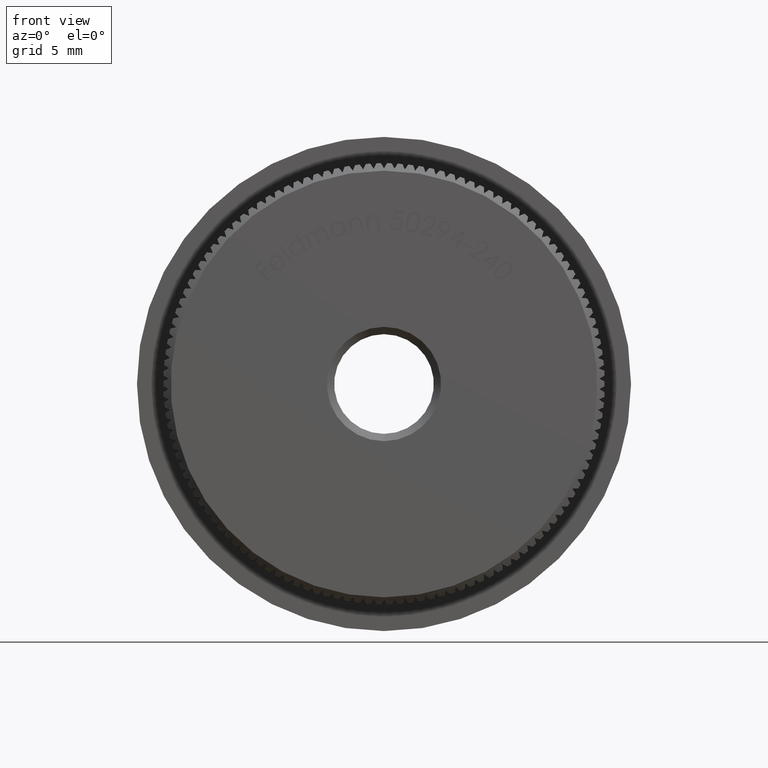
[diagram: clean part render]
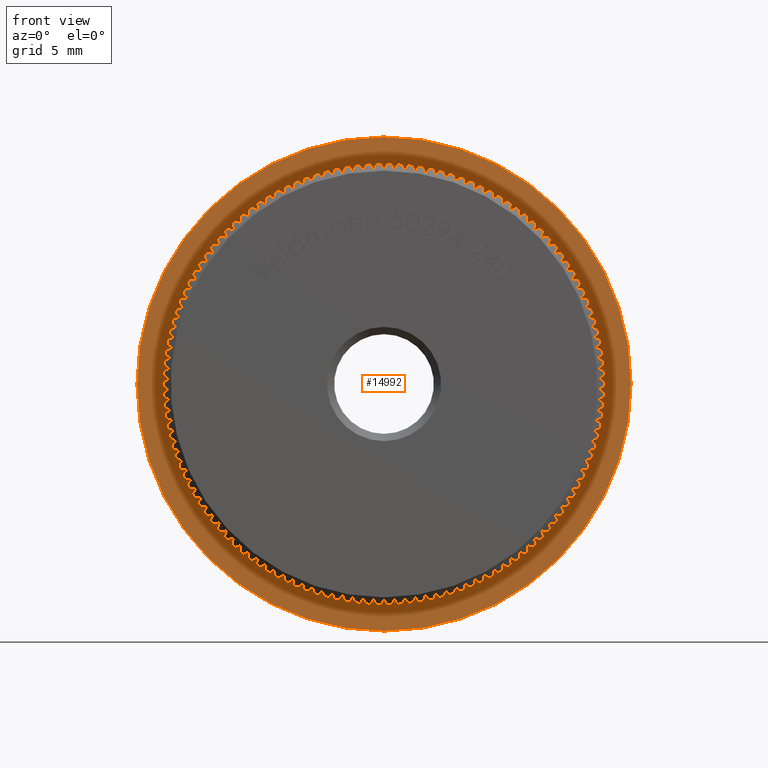
[diagram: same view with one face highlighted and labeled with its STEP entity id]
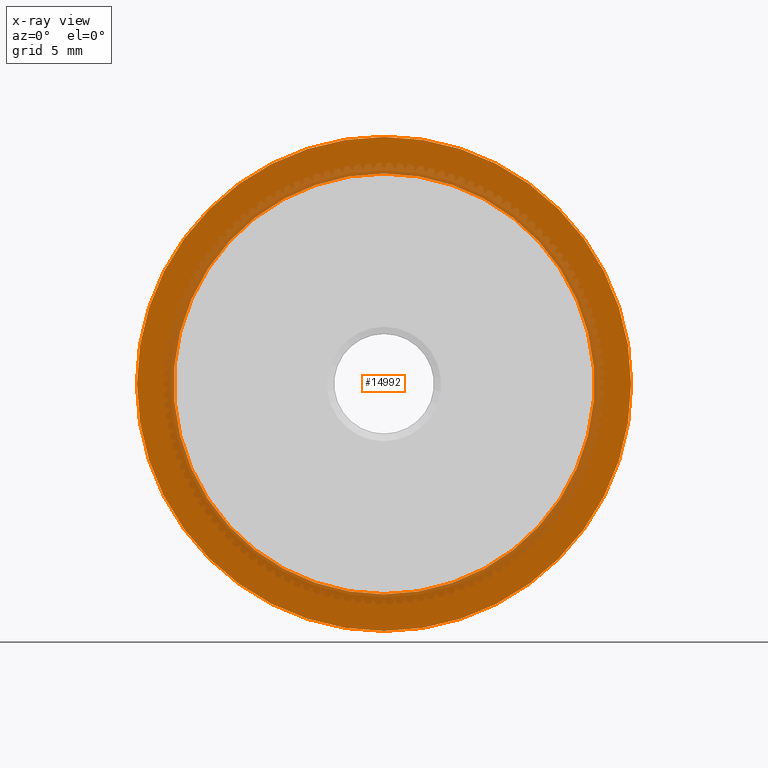
[diagram: x-ray of the same camera — body ghosted, the highlighted face saturated]
A machine part, front view. The second image highlights one B-rep face of the part: STEP entity #14992.
The next image is the same camera in x-ray: the body ghosted, the highlighted face saturated — about 24% of this face is hidden behind the body in this view.
In plain terms, the highlighted planar face has unit normal (0, -1, -0).
Its self-contained STEP definition (entity closure, byte-faithful):
#271 = ORIENTED_EDGE ( 'NONE', *, *, #9283, .T. ) ;
#390 = DIRECTION ( 'NONE',  ( -0.0000000000000000000, -1.000000000000000000, -0.0000000000000000000 ) ) ;
#511 = AXIS2_PLACEMENT_3D ( 'NONE', #20660, #10355, #22608 ) ;
#651 = CARTESIAN_POINT ( 'NONE',  ( 0.0000000000000000000, 7.799999999999999800, 0.0000000000000000000 ) ) ;
#1621 = DIRECTION ( 'NONE',  ( 0.0000000000000000000, -1.000000000000000000, -0.0000000000000000000 ) ) ;
#2541 = EDGE_CURVE ( 'NONE', #23341, #2962, #16486, .T. ) ;
#2962 = VERTEX_POINT ( 'NONE', #16175 ) ;
#3973 = DIRECTION ( 'NONE',  ( -0.0000000000000000000, -1.000000000000000000, -0.0000000000000000000 ) ) ;
#4452 = CARTESIAN_POINT ( 'NONE',  ( 2.063529856563290200E-015, 7.799999999999999800, 16.85000000000000100 ) ) ;
#4768 = DIRECTION ( 'NONE',  ( 0.0000000000000000000, 0.0000000000000000000, -1.000000000000000000 ) ) ;
#5936 = DIRECTION ( 'NONE',  ( 0.0000000000000000000, 0.0000000000000000000, -1.000000000000000000 ) ) ;
#6673 = AXIS2_PLACEMENT_3D ( 'NONE', #26445, #3973, #12436 ) ;
#8655 = VERTEX_POINT ( 'NONE', #4452 ) ;
#9283 = EDGE_CURVE ( 'NONE', #25737, #8655, #19575, .T. ) ;
#9892 = DIRECTION ( 'NONE',  ( 0.0000000000000000000, 0.0000000000000000000, -1.000000000000000000 ) ) ;
#10355 = DIRECTION ( 'NONE',  ( -0.0000000000000000000, -1.000000000000000000, -0.0000000000000000000 ) ) ;
#11865 = PLANE ( 'NONE',  #19041 ) ;
#12436 = DIRECTION ( 'NONE',  ( 0.0000000000000000000, 0.0000000000000000000, -1.000000000000000000 ) ) ;
#13342 = FACE_BOUND ( 'NONE', #13804, .T. ) ;
#13357 = ORIENTED_EDGE ( 'NONE', *, *, #19393, .T. ) ;
#13580 = CARTESIAN_POINT ( 'NONE',  ( 1.800230794746609500E-015, 7.799999999999998900, 14.35000000000000100 ) ) ;
#13694 = ORIENTED_EDGE ( 'NONE', *, *, #2541, .F. ) ;
#13804 = EDGE_LOOP ( 'NONE', ( #14912, #13694 ) ) ;
#13855 = DIRECTION ( 'NONE',  ( -0.0000000000000000000, -1.000000000000000000, -0.0000000000000000000 ) ) ;
#14912 = ORIENTED_EDGE ( 'NONE', *, *, #18252, .F. ) ;
#14992 = ADVANCED_FACE ( 'NONE', ( #19116, #13342 ), #11865, .T. ) ;
#15813 = EDGE_LOOP ( 'NONE', ( #271, #13357 ) ) ;
#15953 = CIRCLE ( 'NONE', #24402, 16.85000000000000100 ) ;
#16175 = CARTESIAN_POINT ( 'NONE',  ( 0.0000000000000000000, 7.799999999999998900, -14.35000000000000100 ) ) ;
#16486 = CIRCLE ( 'NONE', #511, 14.35000000000000100 ) ;
#18252 = EDGE_CURVE ( 'NONE', #2962, #23341, #21263, .T. ) ;
#19041 = AXIS2_PLACEMENT_3D ( 'NONE', #26333, #1621, #9892 ) ;
#19116 = FACE_OUTER_BOUND ( 'NONE', #15813, .T. ) ;
#19393 = EDGE_CURVE ( 'NONE', #8655, #25737, #15953, .T. ) ;
#19575 = CIRCLE ( 'NONE', #21534, 16.85000000000000100 ) ;
#20660 = CARTESIAN_POINT ( 'NONE',  ( 0.0000000000000000000, 7.799999999999998900, 0.0000000000000000000 ) ) ;
#21263 = CIRCLE ( 'NONE', #6673, 14.35000000000000100 ) ;
#21534 = AXIS2_PLACEMENT_3D ( 'NONE', #21993, #13855, #5936 ) ;
#21993 = CARTESIAN_POINT ( 'NONE',  ( 0.0000000000000000000, 7.799999999999999800, 0.0000000000000000000 ) ) ;
#22608 = DIRECTION ( 'NONE',  ( 0.0000000000000000000, 0.0000000000000000000, -1.000000000000000000 ) ) ;
#23341 = VERTEX_POINT ( 'NONE', #13580 ) ;
#23814 = CARTESIAN_POINT ( 'NONE',  ( 0.0000000000000000000, 7.799999999999999800, -16.85000000000000100 ) ) ;
#24402 = AXIS2_PLACEMENT_3D ( 'NONE', #651, #390, #4768 ) ;
#25737 = VERTEX_POINT ( 'NONE', #23814 ) ;
#26333 = CARTESIAN_POINT ( 'NONE',  ( 14.35000000000000100, 7.799999999999999800, 0.0000000000000000000 ) ) ;
#26445 = CARTESIAN_POINT ( 'NONE',  ( 0.0000000000000000000, 7.799999999999998900, 0.0000000000000000000 ) ) ;